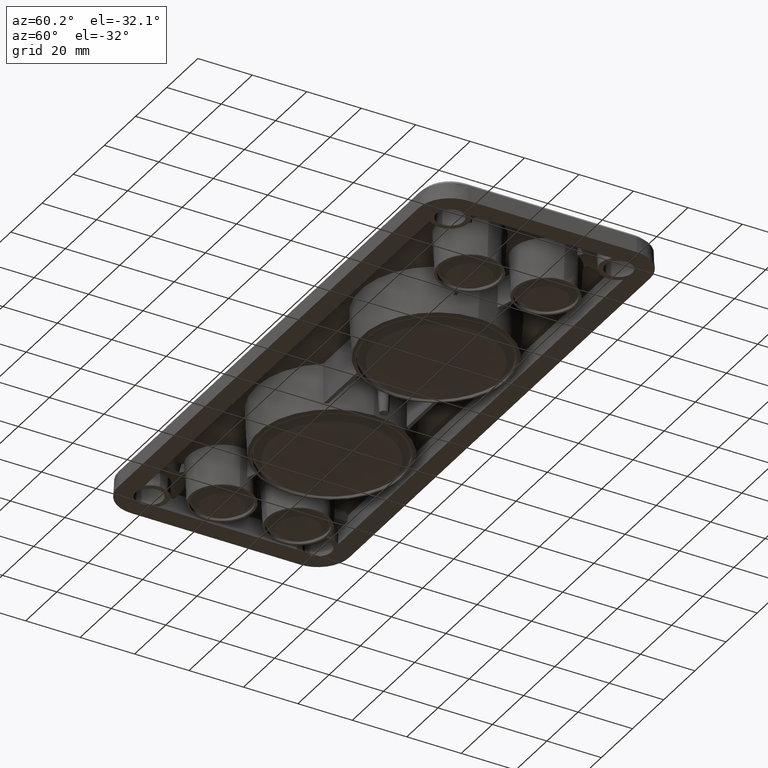
[diagram: clean part render]
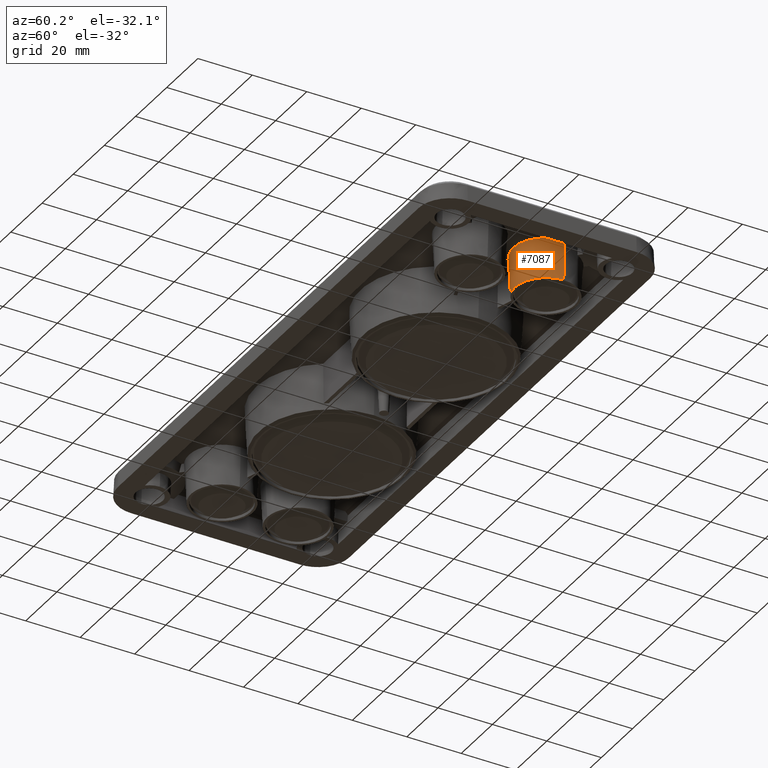
[diagram: same view with one face highlighted and labeled with its STEP entity id]
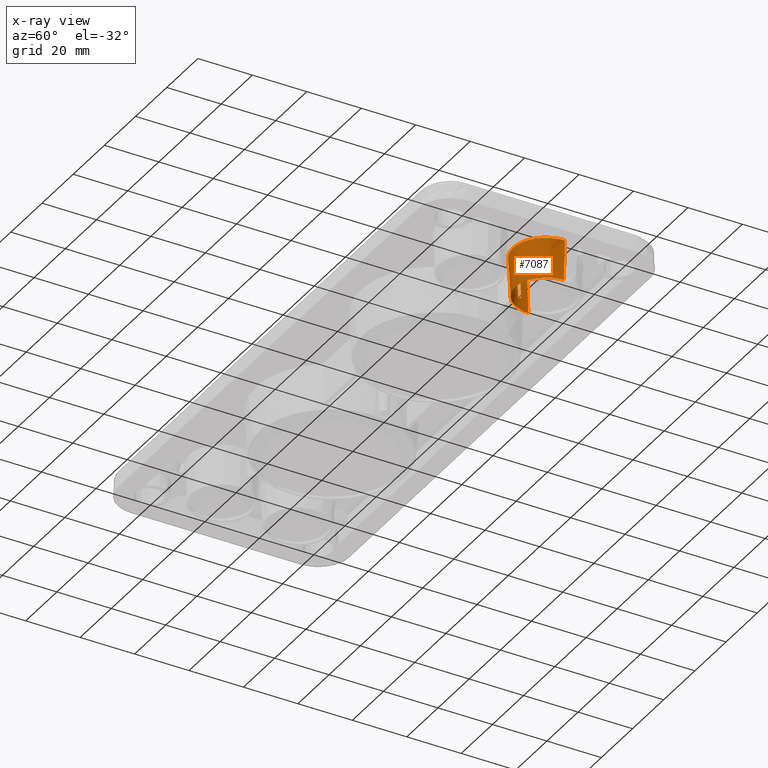
[diagram: x-ray of the same camera — body ghosted, the highlighted face saturated]
A machine part, auxiliary view. The second image highlights one B-rep face of the part: STEP entity #7087.
The next image is the same camera in x-ray: the body ghosted, the highlighted face saturated — about 0% of this face is hidden behind the body in this view.
In plain terms, the highlighted conical surface has half-angle 3 deg.
Its self-contained STEP definition (entity closure, byte-faithful):
#106 = CARTESIAN_POINT ( 'NONE',  ( 72.51932217091985000, 4.916530158020572500, -7.500000000000007100 ) ) ;
#180 = VERTEX_POINT ( 'NONE', #6394 ) ;
#198 = CARTESIAN_POINT ( 'NONE',  ( 67.38101944820756700, 13.99999999999998400, 7.000000000000003600 ) ) ;
#221 = EDGE_CURVE ( 'NONE', #1194, #2013, #2228, .T. ) ;
#287 = CARTESIAN_POINT ( 'NONE',  ( 67.47922358817444900, 12.22211553200408200, 7.000000000000006200 ) ) ;
#690 = VECTOR ( 'NONE', #4839, 1000.000000000000000 ) ;
#706 = CARTESIAN_POINT ( 'NONE',  ( 78.93908979661370000, 1.813425094221681400, 7.000000000000006200 ) ) ;
#778 = CARTESIAN_POINT ( 'NONE',  ( 91.37429749182433600, 11.20209234139829700, 7.000000000000007100 ) ) ;
#819 = VERTEX_POINT ( 'NONE', #2672 ) ;
#944 = EDGE_CURVE ( 'NONE', #947, #4103, #3373, .T. ) ;
#947 = VERTEX_POINT ( 'NONE', #9956 ) ;
#954 = CARTESIAN_POINT ( 'NONE',  ( 90.56342162305557500, 11.02678804757096900, -7.500000000000007100 ) ) ;
#1182 = EDGE_CURVE ( 'NONE', #180, #3188, #1847, .T. ) ;
#1194 = VERTEX_POINT ( 'NONE', #8219 ) ;
#1397 = CARTESIAN_POINT ( 'NONE',  ( 68.14093224781166200, 13.99999999999998400, -7.500000000000007100 ) ) ;
#1431 = CARTESIAN_POINT ( 'NONE',  ( 69.57460121374398900, 8.279357880678949400, -7.500000000000007100 ) ) ;
#1538 = CARTESIAN_POINT ( 'NONE',  ( 72.38964787629905100, 4.086871287661456800, 7.000000000000005300 ) ) ;
#1539 = CARTESIAN_POINT ( 'NONE',  ( 78.01310150825396800, 2.640932247811685200, -7.500000000000007100 ) ) ;
#1572 = CARTESIAN_POINT ( 'NONE',  ( 80.35900982431843400, 1.830804040030707100, 7.000000000000005300 ) ) ;
#1616 = ORIENTED_EDGE ( 'NONE', *, *, #2618, .F. ) ;
#1683 = CARTESIAN_POINT ( 'NONE',  ( 68.20475651442936300, 9.608284592963984800, 7.000000000000000900 ) ) ;
#1761 = CARTESIAN_POINT ( 'NONE',  ( 85.22064211932101300, 4.074601213744052200, -7.500000000000007100 ) ) ;
#1793 = CARTESIAN_POINT ( 'NONE',  ( 80.98689849174593300, 2.640932247811684300, -7.500000000000007100 ) ) ;
#1847 = LINE ( 'NONE', #7842, #690 ) ;
#1964 = CARTESIAN_POINT ( 'NONE',  ( 67.38101944820756700, 13.11104043403559200, 7.000000000000006200 ) ) ;
#2013 = VERTEX_POINT ( 'NONE', #6062 ) ;
#2228 = B_SPLINE_CURVE_WITH_KNOTS ( 'NONE', 3,
 ( #7528, #10772, #10030, #3186 ),
 .UNSPECIFIED., .F., .F.,
 ( 4, 4 ),
 ( 0.0000000000000000000, 1.000000000000000000 ),
 .UNSPECIFIED. ) ;
#2452 = CARTESIAN_POINT ( 'NONE',  ( 87.93241893705607000, 5.184017975268647000, 7.000000000000005300 ) ) ;
#2618 = EDGE_CURVE ( 'NONE', #819, #7943, #3663, .T. ) ;
#2629 = CARTESIAN_POINT ( 'NONE',  ( 70.41653015802054900, 7.019322170919836300, -7.500000000000007100 ) ) ;
#2672 = CARTESIAN_POINT ( 'NONE',  ( 68.14093224781166200, 13.99999999999998400, -7.500000000000007100 ) ) ;
#2839 = CARTESIAN_POINT ( 'NONE',  ( 68.25649940862764700, 11.16707493187793400, -2.999999999999999600 ) ) ;
#3186 = CARTESIAN_POINT ( 'NONE',  ( 67.67327122121194800, 11.35459341353554000, 7.000000000000000900 ) ) ;
#3188 = VERTEX_POINT ( 'NONE', #6051 ) ;
#3373 = B_SPLINE_CURVE_WITH_KNOTS ( 'NONE', 3,
 ( #1683, #10027, #5793, #7565 ),
 .UNSPECIFIED., .F., .F.,
 ( 4, 4 ),
 ( 0.0000000000000000000, 1.000000000000000000 ),
 .UNSPECIFIED. ) ;
#3437 = CARTESIAN_POINT ( 'NONE',  ( 90.85906775218826700, 12.51310150825400000, -7.500000000000007100 ) ) ;
#3505 = CARTESIAN_POINT ( 'NONE',  ( 76.52678804757094600, 2.936578376944400900, -7.500000000000007100 ) ) ;
#3577 = CARTESIAN_POINT ( 'NONE',  ( 67.67327122121194800, 11.35459341353554000, 7.000000000000000900 ) ) ;
#3663 = LINE ( 'NONE', #5179, #7494 ) ;
#3670 = DIRECTION ( 'NONE',  ( 0.0000000000000000000, -0.0000000000000000000, 1.000000000000000000 ) ) ;
#3893 = ORIENTED_EDGE ( 'NONE', *, *, #221, .T. ) ;
#4005 = CARTESIAN_POINT ( 'NONE',  ( 74.83550361446370400, 2.727480243542366600, 7.000000000000006200 ) ) ;
#4008 = EDGE_CURVE ( 'NONE', #3188, #947, #5872, .T. ) ;
#4073 = CARTESIAN_POINT ( 'NONE',  ( 69.44672310118592400, 7.089222056368758900, 7.000000000000006200 ) ) ;
#4103 = VERTEX_POINT ( 'NONE', #8401 ) ;
#4259 = CARTESIAN_POINT ( 'NONE',  ( 88.58346984197936500, 7.019322170919832800, -7.500000000000007100 ) ) ;
#4839 = DIRECTION ( 'NONE',  ( 0.05233595624294350200, 0.0000000000000000000, 0.9986295347545739400 ) ) ;
#4846 = CARTESIAN_POINT ( 'NONE',  ( 68.71177438289376500, 8.304263329048476200, 7.000000000000007100 ) ) ;
#4915 = ORIENTED_EDGE ( 'NONE', *, *, #944, .T. ) ;
#5179 = CARTESIAN_POINT ( 'NONE',  ( 67.38101944820756700, 13.99999999999998400, 6.999999999999999100 ) ) ;
#5209 = ORIENTED_EDGE ( 'NONE', *, *, #6007, .T. ) ;
#5413 = DIRECTION ( 'NONE',  ( 1.000000000000000000, 0.0000000000000000000, 0.0000000000000000000 ) ) ;
#5606 = CARTESIAN_POINT ( 'NONE',  ( 68.43657837694438200, 11.02678804757097600, -7.500000000000007100 ) ) ;
#5682 = CARTESIAN_POINT ( 'NONE',  ( 68.14093224781167600, 12.51310150825400800, -7.500000000000006200 ) ) ;
#5721 = CARTESIAN_POINT ( 'NONE',  ( 89.71940732341019500, 7.337347213861617600, 7.000000000000006200 ) ) ;
#5733 = B_SPLINE_CURVE_WITH_KNOTS ( 'NONE', 3,
 ( #3577, #287, #1964, #9455 ),
 .UNSPECIFIED., .F., .F.,
 ( 4, 4 ),
 ( 0.0000000000000000000, 1.000000000000000000 ),
 .UNSPECIFIED. ) ;
#5792 = CARTESIAN_POINT ( 'NONE',  ( 76.17700737399700000, 2.261816656827232700, 7.000000000000005300 ) ) ;
#5793 = CARTESIAN_POINT ( 'NONE',  ( 68.45957394068172200, 9.931993354728241700, 0.2564502455433027600 ) ) ;
#5872 = B_SPLINE_CURVE_WITH_KNOTS ( 'NONE', 3,
 ( #9915, #9870, #778, #9095, #5721, #2452, #6614, #10768, #9175, #1572, #706, #5792, #4005, #1538, #10025, #4073, #4846, #8336 ),
 .UNSPECIFIED., .F., .F.,
 ( 4, 2, 2, 2, 2, 2, 2, 2, 4 ),
 ( 0.0000000000000000000, 0.1250000000000000000, 0.2500000000000000000, 0.3750000000000000000, 0.5000000000000000000, 0.6250000000000000000, 0.7500000000000000000, 0.8750000000000000000, 1.000000000000000000 ),
 .UNSPECIFIED. ) ;
#5944 = CARTESIAN_POINT ( 'NONE',  ( 73.77935788067893000, 4.074601213744055700, -7.500000000000007100 ) ) ;
#6007 = EDGE_CURVE ( 'NONE', #2013, #7943, #5733, .T. ) ;
#6013 = CARTESIAN_POINT ( 'NONE',  ( 86.48067782908010800, 4.916530158020570700, -7.500000000000007100 ) ) ;
#6051 = CARTESIAN_POINT ( 'NONE',  ( 91.61898055179234700, 13.99999999999998200, 7.000000000000003600 ) ) ;
#6062 = CARTESIAN_POINT ( 'NONE',  ( 67.67327122121194800, 11.35459341353554000, 7.000000000000000900 ) ) ;
#6106 = CARTESIAN_POINT ( 'NONE',  ( 68.58463294845320500, 10.08892187245102100, -2.999999999999999600 ) ) ;
#6394 = CARTESIAN_POINT ( 'NONE',  ( 90.85906775218826700, 13.99999999999998200, -7.500000000000007100 ) ) ;
#6575 = CARTESIAN_POINT ( 'NONE',  ( 82.47321195242898300, 2.936578376944398700, -7.500000000000007100 ) ) ;
#6614 = CARTESIAN_POINT ( 'NONE',  ( 86.85084696848598200, 4.263867449736083300, 7.000000000000006200 ) ) ;
#7087 = ADVANCED_FACE ( 'NONE', ( #9691 ), #8774, .T. ) ;
#7213 = ORIENTED_EDGE ( 'NONE', *, *, #10500, .T. ) ;
#7347 = B_SPLINE_CURVE_WITH_KNOTS ( 'NONE', 3,
 ( #1397, #5682, #5606, #1431, #2629, #106, #5944, #3505, #1539, #1793, #6575, #1761, #6013, #4259, #8481, #954, #3437, #9317 ),
 .UNSPECIFIED., .F., .F.,
 ( 4, 2, 2, 2, 2, 2, 2, 2, 4 ),
 ( 0.0000000000000000000, 0.1250000000000000000, 0.2500000000000000000, 0.3750000000000000000, 0.5000000000000000000, 0.6250000000000000000, 0.7500000000000000000, 0.8750000000000000000, 1.000000000000000000 ),
 .UNSPECIFIED. ) ;
#7494 = VECTOR ( 'NONE', #10212, 1000.000000000000000 ) ;
#7528 = CARTESIAN_POINT ( 'NONE',  ( 68.25649940862764700, 11.16707493187793400, -2.999999999999999600 ) ) ;
#7565 = CARTESIAN_POINT ( 'NONE',  ( 68.58463294845320500, 10.08892187245102100, -2.999999999999999600 ) ) ;
#7827 = AXIS2_PLACEMENT_3D ( 'NONE', #8634, #3670, #5413 ) ;
#7836 = CARTESIAN_POINT ( 'NONE',  ( 68.45786900876819900, 10.44270537803115100, -3.000000000000002700 ) ) ;
#7842 = CARTESIAN_POINT ( 'NONE',  ( 91.61898055179234700, 13.99999999999998200, 6.999999999999999100 ) ) ;
#7943 = VERTEX_POINT ( 'NONE', #198 ) ;
#8029 = ORIENTED_EDGE ( 'NONE', *, *, #9014, .T. ) ;
#8219 = CARTESIAN_POINT ( 'NONE',  ( 68.25649940862764700, 11.16707493187793400, -2.999999999999999600 ) ) ;
#8336 = CARTESIAN_POINT ( 'NONE',  ( 68.20475651442936300, 9.608284592963984800, 7.000000000000000900 ) ) ;
#8401 = CARTESIAN_POINT ( 'NONE',  ( 68.58463294845320500, 10.08892187245102100, -2.999999999999999600 ) ) ;
#8481 = CARTESIAN_POINT ( 'NONE',  ( 89.42539878625591100, 8.279357880678938700, -7.500000000000007100 ) ) ;
#8634 = CARTESIAN_POINT ( 'NONE',  ( 79.49999999999995700, 13.99999999999998200, 6.999999999999999100 ) ) ;
#8774 = CONICAL_SURFACE ( 'NONE', #7827, 12.11898055179239000, 0.05235987755982954300 ) ;
#9014 = EDGE_CURVE ( 'NONE', #819, #180, #7347, .T. ) ;
#9095 = CARTESIAN_POINT ( 'NONE',  ( 90.42439762292824000, 8.570012452448256800, 7.000000000000006200 ) ) ;
#9175 = CARTESIAN_POINT ( 'NONE',  ( 83.10929040850659500, 2.346663527664254000, 7.000000000000006200 ) ) ;
#9317 = CARTESIAN_POINT ( 'NONE',  ( 90.85906775218826700, 13.99999999999998200, -7.500000000000007100 ) ) ;
#9431 = EDGE_LOOP ( 'NONE', ( #1616, #8029, #9569, #10351, #4915, #7213, #3893, #5209 ) ) ;
#9455 = CARTESIAN_POINT ( 'NONE',  ( 67.38101944820756700, 13.99999999999998400, 7.000000000000003600 ) ) ;
#9522 = CARTESIAN_POINT ( 'NONE',  ( 68.34831878189405100, 10.80265612347476700, -3.000000000000002700 ) ) ;
#9569 = ORIENTED_EDGE ( 'NONE', *, *, #1182, .T. ) ;
#9691 = FACE_OUTER_BOUND ( 'NONE', #9431, .T. ) ;
#9870 = CARTESIAN_POINT ( 'NONE',  ( 91.61898055179236200, 12.60087935627907500, 7.000000000000005300 ) ) ;
#9915 = CARTESIAN_POINT ( 'NONE',  ( 91.61898055179234700, 13.99999999999998200, 7.000000000000003600 ) ) ;
#9956 = CARTESIAN_POINT ( 'NONE',  ( 68.20475651442936300, 9.608284592963984800, 7.000000000000000900 ) ) ;
#10025 = CARTESIAN_POINT ( 'NONE',  ( 71.28587912686725800, 4.980274589990332700, 7.000000000000006200 ) ) ;
#10027 = CARTESIAN_POINT ( 'NONE',  ( 68.33294357309397100, 9.771779436061674300, 3.589783578876633500 ) ) ;
#10030 = CARTESIAN_POINT ( 'NONE',  ( 67.87080604411234200, 11.29023131700116200, 3.589783578877517200 ) ) ;
#10212 = DIRECTION ( 'NONE',  ( -0.05233595624294350200, 6.409306129323669300E-018, 0.9986295347545739400 ) ) ;
#10351 = ORIENTED_EDGE ( 'NONE', *, *, #4008, .T. ) ;
#10500 = EDGE_CURVE ( 'NONE', #4103, #1194, #10510, .T. ) ;
#10510 = B_SPLINE_CURVE_WITH_KNOTS ( 'NONE', 3,
 ( #6106, #7836, #9522, #2839 ),
 .UNSPECIFIED., .F., .F.,
 ( 4, 4 ),
 ( 0.0000000000000000000, 1.000000000000000000 ),
 .UNSPECIFIED. ) ;
#10768 = CARTESIAN_POINT ( 'NONE',  ( 84.43899514383167600, 2.845021059651636100, 7.000000000000005300 ) ) ;
#10772 = CARTESIAN_POINT ( 'NONE',  ( 68.06522033174685800, 11.22772664122833700, 0.2564502455441844400 ) ) ;